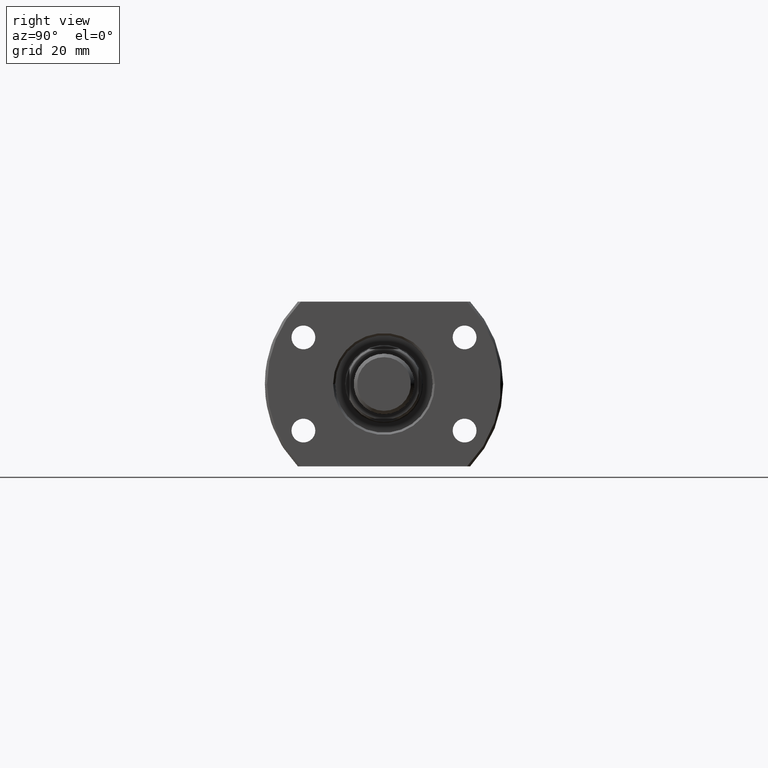
[diagram: clean part render]
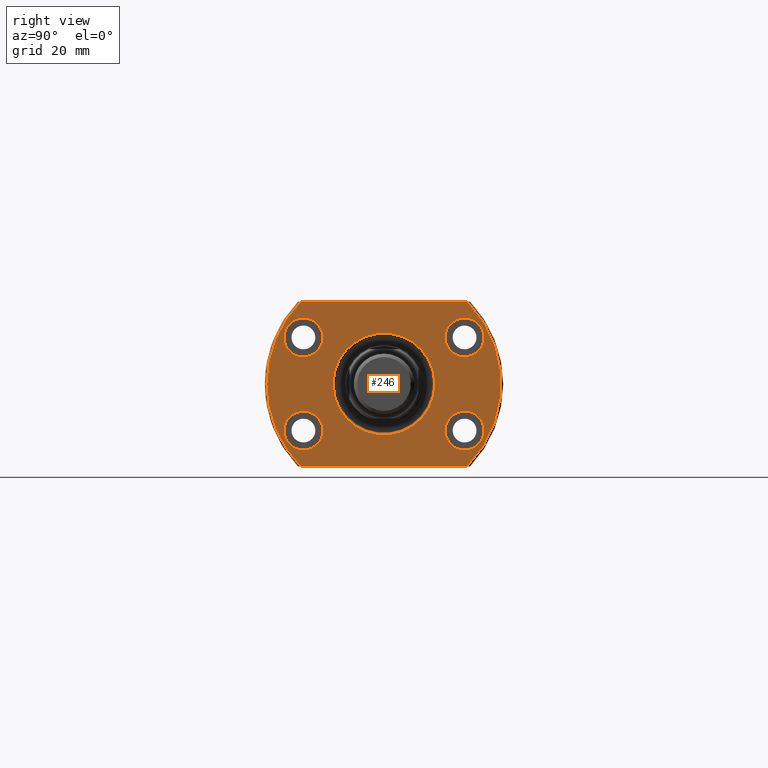
[diagram: same view with one face highlighted and labeled with its STEP entity id]
A machine part, right view. The second image highlights one B-rep face of the part: STEP entity #246.
In plain terms, the highlighted planar face has unit normal (-1, -0, 0).
Its self-contained STEP definition (entity closure, byte-faithful):
#47 = EDGE_CURVE ( 'NONE', #2544, #2002, #1199, .T. ) ;
#112 = DIRECTION ( 'NONE',  ( 1.000000000000000000, -2.886466111666351885E-14, 0.000000000000000000 ) ) ;
#140 = ORIENTED_EDGE ( 'NONE', *, *, #3518, .F. ) ;
#179 = CARTESIAN_POINT ( 'NONE',  ( 26.50000000000041211, 14.09999999999923403, -10.75000000000000000 ) ) ;
#246 = ADVANCED_FACE ( 'NONE', ( #2546, #1113, #1941, #3080, #3104, #1957 ), #2262, .F. ) ;
#260 = ORIENTED_EDGE ( 'NONE', *, *, #3669, .T. ) ;
#283 = VERTEX_POINT ( 'NONE', #2903 ) ;
#318 = EDGE_LOOP ( 'NONE', ( #2510, #2373 ) ) ;
#338 = CIRCLE ( 'NONE', #2405, 27.00000000000000000 ) ;
#376 = EDGE_CURVE ( 'NONE', #1592, #2971, #3273, .T. ) ;
#401 = AXIS2_PLACEMENT_3D ( 'NONE', #3040, #468, #500 ) ;
#445 = ORIENTED_EDGE ( 'NONE', *, *, #838, .T. ) ;
#468 = DIRECTION ( 'NONE',  ( -1.000000000000000000, -9.242617352055502386E-18, 0.000000000000000000 ) ) ;
#500 = DIRECTION ( 'NONE',  ( 0.000000000000000000, -1.000000000000000000, 0.000000000000000000 ) ) ;
#534 = CARTESIAN_POINT ( 'NONE',  ( 26.50000000000000355, 19.88089535207168623, 19.00000000000001066 ) ) ;
#543 = DIRECTION ( 'NONE',  ( 1.000000000000000000, 9.242617352055502386E-18, -0.000000000000000000 ) ) ;
#562 = VECTOR ( 'NONE', #1670, 1000.000000000000000 ) ;
#566 = CARTESIAN_POINT ( 'NONE',  ( 26.50000000000000355, -27.00000000000000000, 0.000000000000000000 ) ) ;
#618 = EDGE_CURVE ( 'NONE', #283, #1167, #3525, .T. ) ;
#621 = AXIS2_PLACEMENT_3D ( 'NONE', #1556, #2126, #1780 ) ;
#633 = EDGE_LOOP ( 'NONE', ( #2255, #3145, #2564, #3493, #445 ) ) ;
#711 = DIRECTION ( 'NONE',  ( 1.000000000000000000, 9.242617352055502386E-18, -0.000000000000000000 ) ) ;
#733 = CIRCLE ( 'NONE', #621, 4.500000000000000888 ) ;
#738 = CIRCLE ( 'NONE', #3287, 4.500000000000000888 ) ;
#744 = ORIENTED_EDGE ( 'NONE', *, *, #1195, .F. ) ;
#773 = ORIENTED_EDGE ( 'NONE', *, *, #2488, .F. ) ;
#784 = EDGE_CURVE ( 'NONE', #1617, #1920, #2877, .T. ) ;
#838 = EDGE_CURVE ( 'NONE', #2971, #1959, #2592, .T. ) ;
#849 = CARTESIAN_POINT ( 'NONE',  ( 26.50000000000000355, -11.75000000000071054, 1.438959988998140752E-15 ) ) ;
#915 = DIRECTION ( 'NONE',  ( 2.852656382717415620E-14, 1.000000000000000000, 0.000000000000000000 ) ) ;
#968 = DIRECTION ( 'NONE',  ( 1.000000000000000000, -2.883293662278287419E-14, -3.155443620884046521E-30 ) ) ;
#982 = AXIS2_PLACEMENT_3D ( 'NONE', #2800, #1343, #2494 ) ;
#1003 = EDGE_CURVE ( 'NONE', #3378, #1745, #738, .T. ) ;
#1064 = CARTESIAN_POINT ( 'NONE',  ( 26.50000000000000355, -19.18332609325086224, 19.00000000000000711 ) ) ;
#1075 = DIRECTION ( 'NONE',  ( -1.000000000000000000, -9.242617352055502386E-18, 0.000000000000000000 ) ) ;
#1095 = AXIS2_PLACEMENT_3D ( 'NONE', #3215, #2359, #1230 ) ;
#1113 = FACE_BOUND ( 'NONE', #1492, .T. ) ;
#1137 = CARTESIAN_POINT ( 'NONE',  ( 26.50000000000000355, 2.449293598294708386E-16, 0.000000000000000000 ) ) ;
#1144 = AXIS2_PLACEMENT_3D ( 'NONE', #2568, #543, #3344 ) ;
#1167 = VERTEX_POINT ( 'NONE', #179 ) ;
#1171 = CARTESIAN_POINT ( 'NONE',  ( 26.49999999999946354, -18.60000000000076881, -10.75000000000000000 ) ) ;
#1181 = CARTESIAN_POINT ( 'NONE',  ( 26.50000000000054001, 18.59999999999923403, -10.75000000000000000 ) ) ;
#1195 = EDGE_CURVE ( 'NONE', #1745, #3378, #3535, .T. ) ;
#1199 = CIRCLE ( 'NONE', #2870, 4.500000000000000888 ) ;
#1204 = AXIS2_PLACEMENT_3D ( 'NONE', #2542, #1650, #2573 ) ;
#1230 = DIRECTION ( 'NONE',  ( 2.852656382717415620E-14, 1.000000000000000000, 0.000000000000000000 ) ) ;
#1251 = DIRECTION ( 'NONE',  ( 2.852656382717415620E-14, 1.000000000000000000, 0.000000000000000000 ) ) ;
#1321 = AXIS2_PLACEMENT_3D ( 'NONE', #3166, #1522, #1251 ) ;
#1343 = DIRECTION ( 'NONE',  ( 1.000000000000000000, -2.886466111666351885E-14, 0.000000000000000000 ) ) ;
#1376 = AXIS2_PLACEMENT_3D ( 'NONE', #566, #3092, #1690 ) ;
#1396 = AXIS2_PLACEMENT_3D ( 'NONE', #3258, #1075, #3240 ) ;
#1437 = EDGE_CURVE ( 'NONE', #1167, #283, #733, .T. ) ;
#1455 = DIRECTION ( 'NONE',  ( 2.852656382717415620E-14, 1.000000000000000000, 0.000000000000000000 ) ) ;
#1461 = CARTESIAN_POINT ( 'NONE',  ( 26.49999999999933564, -23.10000000000076881, 10.75000000000000000 ) ) ;
#1492 = EDGE_LOOP ( 'NONE', ( #2622, #744 ) ) ;
#1502 = CARTESIAN_POINT ( 'NONE',  ( 26.50000000000000355, -27.00000000000000355, 0.000000000000000000 ) ) ;
#1521 = CIRCLE ( 'NONE', #1396, 11.74999999999932498 ) ;
#1522 = DIRECTION ( 'NONE',  ( 1.000000000000000000, -2.883293662278287419E-14, -3.155443620884046521E-30 ) ) ;
#1542 = CARTESIAN_POINT ( 'NONE',  ( 26.50000000000000355, 19.18332609325086580, -19.00000000000001066 ) ) ;
#1556 = CARTESIAN_POINT ( 'NONE',  ( 26.50000000000054001, 18.59999999999923403, -10.75000000000000000 ) ) ;
#1592 = VERTEX_POINT ( 'NONE', #2714 ) ;
#1617 = VERTEX_POINT ( 'NONE', #1064 ) ;
#1650 = DIRECTION ( 'NONE',  ( 1.000000000000000000, -2.883293662278287419E-14, -3.155443620884046521E-30 ) ) ;
#1670 = DIRECTION ( 'NONE',  ( -9.242617352055502386E-18, 1.000000000000000000, -0.000000000000000000 ) ) ;
#1683 = DIRECTION ( 'NONE',  ( 1.000000000000000000, 9.242617352055502386E-18, -0.000000000000000000 ) ) ;
#1690 = DIRECTION ( 'NONE',  ( 9.242617352055502386E-18, -1.000000000000000000, 0.000000000000000000 ) ) ;
#1693 = CIRCLE ( 'NONE', #1095, 4.500000000000000888 ) ;
#1719 = CARTESIAN_POINT ( 'NONE',  ( 26.50000000000066791, 23.09999999999923403, 10.75000000000000000 ) ) ;
#1735 = CARTESIAN_POINT ( 'NONE',  ( 26.49999999999959499, -14.10000000000076881, 10.75000000000000000 ) ) ;
#1737 = AXIS2_PLACEMENT_3D ( 'NONE', #1181, #3511, #2102 ) ;
#1745 = VERTEX_POINT ( 'NONE', #2665 ) ;
#1780 = DIRECTION ( 'NONE',  ( 2.852656382717415620E-14, 1.000000000000000000, 0.000000000000000000 ) ) ;
#1847 = DIRECTION ( 'NONE',  ( 0.000000000000000000, 1.000000000000000000, 0.000000000000000000 ) ) ;
#1905 = VERTEX_POINT ( 'NONE', #1461 ) ;
#1907 = EDGE_CURVE ( 'NONE', #3565, #1905, #2646, .T. ) ;
#1917 = LINE ( 'NONE', #534, #2245 ) ;
#1920 = VERTEX_POINT ( 'NONE', #1502 ) ;
#1941 = FACE_BOUND ( 'NONE', #2600, .T. ) ;
#1957 = FACE_OUTER_BOUND ( 'NONE', #633, .T. ) ;
#1959 = VERTEX_POINT ( 'NONE', #3648 ) ;
#2002 = VERTEX_POINT ( 'NONE', #3098 ) ;
#2008 = CARTESIAN_POINT ( 'NONE',  ( 26.49999999999933564, -23.10000000000076881, -10.75000000000000000 ) ) ;
#2102 = DIRECTION ( 'NONE',  ( 2.852656382717415620E-14, 1.000000000000000000, 0.000000000000000000 ) ) ;
#2126 = DIRECTION ( 'NONE',  ( 1.000000000000000000, -2.883293662278287419E-14, -3.155443620884046521E-30 ) ) ;
#2245 = VECTOR ( 'NONE', #2503, 1000.000000000000000 ) ;
#2255 = ORIENTED_EDGE ( 'NONE', *, *, #3622, .F. ) ;
#2262 = PLANE ( 'NONE',  #1376 ) ;
#2282 = EDGE_LOOP ( 'NONE', ( #773, #3331 ) ) ;
#2359 = DIRECTION ( 'NONE',  ( 1.000000000000000000, -2.883293662278287419E-14, -3.155443620884046521E-30 ) ) ;
#2373 = ORIENTED_EDGE ( 'NONE', *, *, #1437, .F. ) ;
#2405 = AXIS2_PLACEMENT_3D ( 'NONE', #2408, #711, #1847 ) ;
#2408 = CARTESIAN_POINT ( 'NONE',  ( 26.50000000000000355, 2.449293598294708386E-16, 0.000000000000000000 ) ) ;
#2435 = VERTEX_POINT ( 'NONE', #849 ) ;
#2453 = EDGE_CURVE ( 'NONE', #1920, #1592, #338, .T. ) ;
#2488 = EDGE_CURVE ( 'NONE', #2002, #2544, #2820, .T. ) ;
#2494 = DIRECTION ( 'NONE',  ( 2.852656382717415620E-14, 1.000000000000000000, 0.000000000000000000 ) ) ;
#2503 = DIRECTION ( 'NONE',  ( -0.000000000000000000, 1.000000000000000000, 0.000000000000000000 ) ) ;
#2510 = ORIENTED_EDGE ( 'NONE', *, *, #618, .F. ) ;
#2542 = CARTESIAN_POINT ( 'NONE',  ( 26.49999999999946354, -18.60000000000076881, -10.75000000000000000 ) ) ;
#2544 = VERTEX_POINT ( 'NONE', #2008 ) ;
#2546 = FACE_BOUND ( 'NONE', #3034, .T. ) ;
#2564 = ORIENTED_EDGE ( 'NONE', *, *, #2453, .T. ) ;
#2568 = CARTESIAN_POINT ( 'NONE',  ( 26.50000000000000355, 2.449293598294708386E-16, 0.000000000000000000 ) ) ;
#2573 = DIRECTION ( 'NONE',  ( 2.852656382717415620E-14, 1.000000000000000000, 0.000000000000000000 ) ) ;
#2592 = CIRCLE ( 'NONE', #1144, 27.00000000000000000 ) ;
#2600 = EDGE_LOOP ( 'NONE', ( #2675, #140 ) ) ;
#2622 = ORIENTED_EDGE ( 'NONE', *, *, #1003, .F. ) ;
#2646 = CIRCLE ( 'NONE', #1321, 4.500000000000000888 ) ;
#2665 = CARTESIAN_POINT ( 'NONE',  ( 26.50000000000041211, 14.09999999999923403, 10.75000000000000000 ) ) ;
#2675 = ORIENTED_EDGE ( 'NONE', *, *, #1907, .F. ) ;
#2714 = CARTESIAN_POINT ( 'NONE',  ( 26.50000000000000355, -19.18332609325086580, -19.00000000000001066 ) ) ;
#2742 = CARTESIAN_POINT ( 'NONE',  ( 26.50000000000000355, 11.74999999999861622, 0.000000000000000000 ) ) ;
#2764 = VERTEX_POINT ( 'NONE', #2742 ) ;
#2789 = ORIENTED_EDGE ( 'NONE', *, *, #3211, .T. ) ;
#2800 = CARTESIAN_POINT ( 'NONE',  ( 26.50000000000054001, 18.59999999999923403, 10.75000000000000000 ) ) ;
#2820 = CIRCLE ( 'NONE', #1204, 4.500000000000000888 ) ;
#2826 = CIRCLE ( 'NONE', #401, 11.74999999999932498 ) ;
#2870 = AXIS2_PLACEMENT_3D ( 'NONE', #1171, #968, #1455 ) ;
#2877 = CIRCLE ( 'NONE', #3053, 27.00000000000000000 ) ;
#2903 = CARTESIAN_POINT ( 'NONE',  ( 26.50000000000066791, 23.09999999999923403, -10.75000000000000000 ) ) ;
#2971 = VERTEX_POINT ( 'NONE', #1542 ) ;
#3034 = EDGE_LOOP ( 'NONE', ( #260, #2789 ) ) ;
#3040 = CARTESIAN_POINT ( 'NONE',  ( 26.50000000000000355, -7.069515144664183387E-13, 0.000000000000000000 ) ) ;
#3053 = AXIS2_PLACEMENT_3D ( 'NONE', #1137, #1683, #3369 ) ;
#3080 = FACE_BOUND ( 'NONE', #2282, .T. ) ;
#3092 = DIRECTION ( 'NONE',  ( -1.000000000000000000, -9.242617352055502386E-18, 0.000000000000000000 ) ) ;
#3098 = CARTESIAN_POINT ( 'NONE',  ( 26.49999999999959499, -14.10000000000076881, -10.75000000000000000 ) ) ;
#3104 = FACE_BOUND ( 'NONE', #318, .T. ) ;
#3145 = ORIENTED_EDGE ( 'NONE', *, *, #784, .T. ) ;
#3166 = CARTESIAN_POINT ( 'NONE',  ( 26.49999999999946354, -18.60000000000076881, 10.75000000000000000 ) ) ;
#3181 = CARTESIAN_POINT ( 'NONE',  ( 26.50000000000054001, 18.59999999999923403, 10.75000000000000000 ) ) ;
#3211 = EDGE_CURVE ( 'NONE', #2435, #2764, #2826, .T. ) ;
#3215 = CARTESIAN_POINT ( 'NONE',  ( 26.49999999999946354, -18.60000000000076881, 10.75000000000000000 ) ) ;
#3240 = DIRECTION ( 'NONE',  ( 0.000000000000000000, -1.000000000000000000, 0.000000000000000000 ) ) ;
#3257 = CARTESIAN_POINT ( 'NONE',  ( 26.50000000000000355, -27.00000000000000000, -19.00000000000001066 ) ) ;
#3258 = CARTESIAN_POINT ( 'NONE',  ( 26.50000000000000355, -7.069515144664183387E-13, 0.000000000000000000 ) ) ;
#3273 = LINE ( 'NONE', #3257, #562 ) ;
#3287 = AXIS2_PLACEMENT_3D ( 'NONE', #3181, #112, #915 ) ;
#3331 = ORIENTED_EDGE ( 'NONE', *, *, #47, .F. ) ;
#3344 = DIRECTION ( 'NONE',  ( 0.000000000000000000, 1.000000000000000000, 0.000000000000000000 ) ) ;
#3369 = DIRECTION ( 'NONE',  ( 0.000000000000000000, 1.000000000000000000, 0.000000000000000000 ) ) ;
#3378 = VERTEX_POINT ( 'NONE', #1719 ) ;
#3493 = ORIENTED_EDGE ( 'NONE', *, *, #376, .T. ) ;
#3511 = DIRECTION ( 'NONE',  ( 1.000000000000000000, -2.883293662278287419E-14, -3.155443620884046521E-30 ) ) ;
#3518 = EDGE_CURVE ( 'NONE', #1905, #3565, #1693, .T. ) ;
#3525 = CIRCLE ( 'NONE', #1737, 4.500000000000000888 ) ;
#3535 = CIRCLE ( 'NONE', #982, 4.500000000000000888 ) ;
#3565 = VERTEX_POINT ( 'NONE', #1735 ) ;
#3622 = EDGE_CURVE ( 'NONE', #1617, #1959, #1917, .T. ) ;
#3648 = CARTESIAN_POINT ( 'NONE',  ( 26.50000000000000355, 19.18332609325086935, 19.00000000000000711 ) ) ;
#3669 = EDGE_CURVE ( 'NONE', #2764, #2435, #1521, .T. ) ;